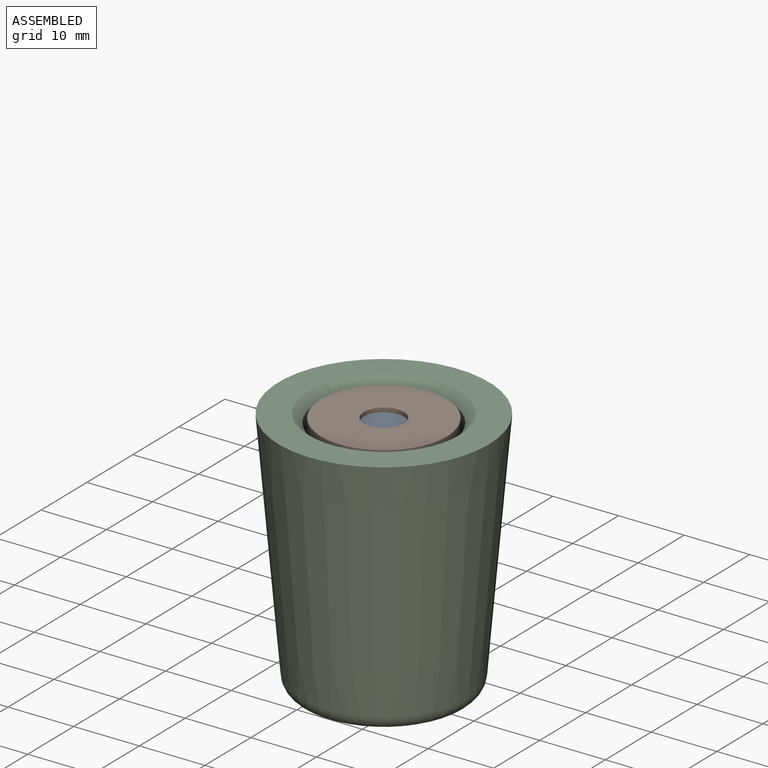
[diagram: assembled view]
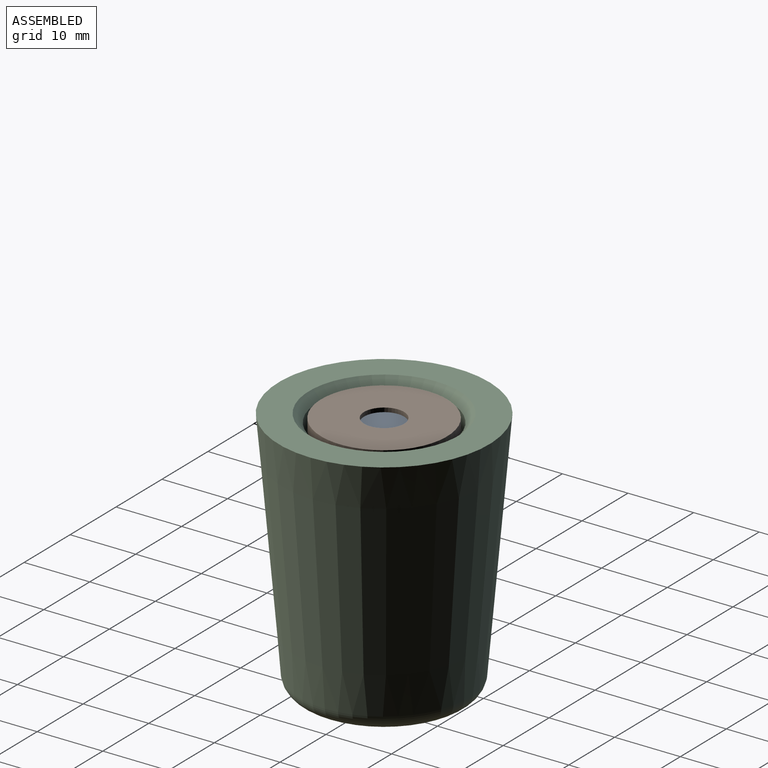
[diagram: assembled view, second angle]
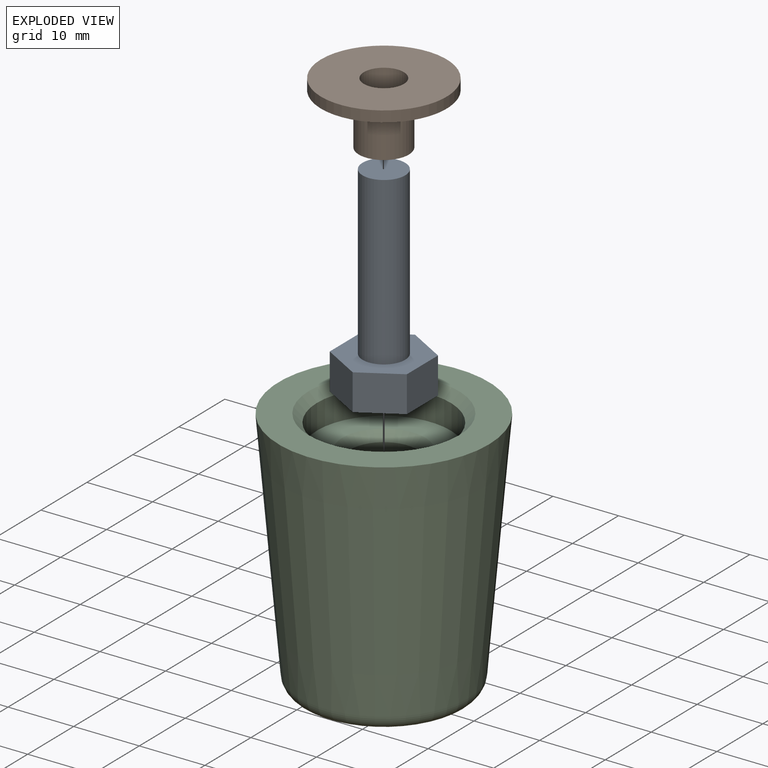
[diagram: exploded view]
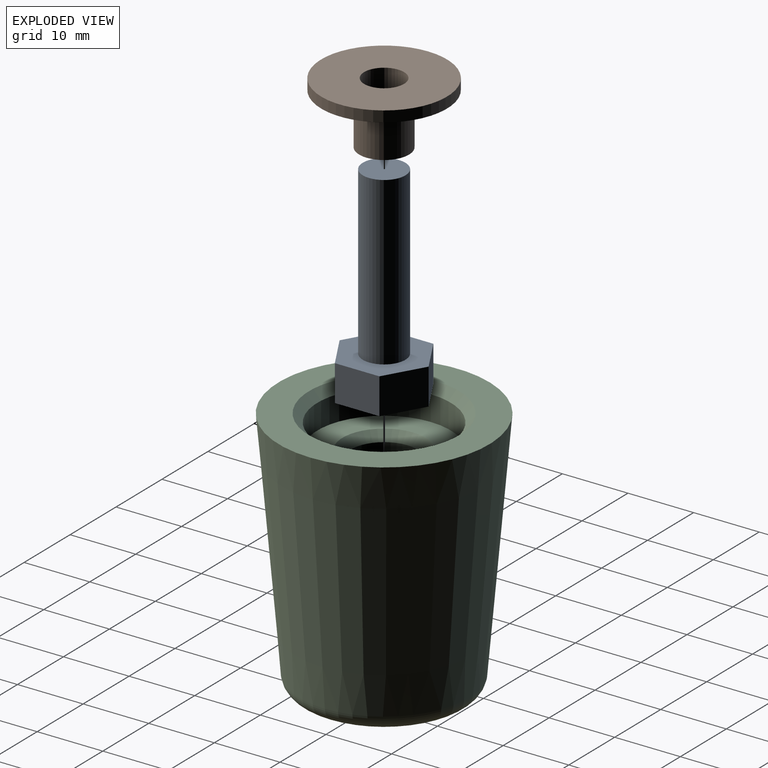
[diagram: exploded view, second angle]
ASSEMBLY  parts=3 mates=2
PART A: 10 faces, bbox 11.8x13.6x30.9 mm
  f0: plane 5.88x5.5mm, normal (0.5,0.87,0), area 37.3mm2, adj f1,f5,f6,f7
  f1: plane 5.88x5.5mm, normal (-0.5,0.87,0), area 37.3mm2, adj f0,f2,f6,f7
  f2: plane 6.78x5.5mm, normal (-1,0,0), area 37.3mm2, adj f1,f3,f6,f7
  f3: plane 5.88x5.5mm, normal (-0.5,-0.87,0), area 37.3mm2, adj f2,f4,f6,f7
  f4: plane 5.88x5.5mm, normal (0.5,-0.87,0), area 37.3mm2, adj f3,f5,f6,f7
  f5: plane 6.78x5.5mm, normal (1,0,0), area 37.3mm2, adj f0,f4,f6,f7
  f6: plane 13.57x11.75mm, normal (0,0,-1), area 86.4mm2, adj f0,f1,f2,f3,f4,f5,f8
  f7: plane 13.57x11.75mm, normal (0,0,1), area 119.6mm2, adj f0,f1,f2,f3,f4,f5
  f8: cylinder r=3.25mm len=25.4mm, axis (0,0,1), area 518.7mm2, adj f6,f9
  f9: plane 6.5x6.5mm, normal (0,0,-1), area 33.2mm2, adj f8
PART B: 6 faces, bbox 19.2x19.2x9.5 mm
  f0: cylinder r=3.05mm len=9.53mm, axis (0,0,1), area 182.4mm2, adj f2,f5
  f1: cylinder r=9.59mm len=19.18mm, axis (0,0,1), area 99.5mm2, adj f2,f3
  f2: plane 19.18x19.18mm, normal (0,0,-1), area 259.6mm2, adj f0,f1
  f3: plane 19.18x19.18mm, normal (0,0,1), area 243.2mm2, adj f1,f4
  f4: cylinder r=3.81mm len=7.87mm, axis (0,0,-1), area 188.5mm2, adj f3,f5
  f5: plane 7.62x7.62mm, normal (0,0,1), area 16.4mm2, adj f0,f4
PART C: 19 faces, bbox 32.1x32.1x38.1 mm
  f0: cylinder r=3.25mm len=15.24mm, axis (0,0,-1), area 311.2mm2, adj f10,f18
  f1: cone r=12.7mm half-angle=5deg, axis (0,0,1), area 3265.2mm2, adj f2,f15
  f2: plane 32.07x32.07mm, normal (0,0,1), area 397.2mm2, adj f1,f16
  f3: plane 20.75x20.75mm, normal (0,0,-1), area 218.4mm2, adj f4,f5,f6,f7,f8,f9,f15
  f4: plane 11.43x5.88mm, normal (-0.5,-0.87,0), area 77.5mm2, adj f3,f5,f9,f10
  f5: plane 11.43x5.88mm, normal (0.5,-0.87,0), area 77.5mm2, adj f3,f4,f6,f10
  f6: plane 11.43x6.78mm, normal (1,0,0), area 77.5mm2, adj f3,f5,f7,f10
  f7: plane 11.43x5.88mm, normal (0.5,0.87,0), area 77.5mm2, adj f3,f6,f8,f10
  f8: plane 11.43x5.88mm, normal (-0.5,0.87,0), area 77.5mm2, adj f3,f7,f9,f10
  f9: plane 11.43x6.78mm, normal (-1,0,0), area 77.5mm2, adj f3,f4,f8,f10
  f10: plane 13.57x11.75mm, normal (0,0,-1), area 86.4mm2, adj f0,f4,f5,f6,f7,f8,f9
  f11: cylinder r=10.16mm len=20.32mm, axis (0,0,1), area 243.2mm2, adj f12,f16
  f12: plane 20.32x20.32mm, normal (0,0,1), area 197.6mm2, adj f11,f17
  f13: cylinder r=5.08mm len=10.16mm, axis (0,0,1), area 121.6mm2, adj f14,f17
  f14: plane 10.16x10.16mm, normal (0,0,1), area 16.9mm2, adj f13,f18
  f15: torus R=10.37mm, axis (0,0,1), area 282.6mm2, adj f1,f3
  f16: cone r=10.16mm half-angle=45deg, axis (0,0,1), area 121.8mm2, adj f2,f11
  f17: cone r=5.08mm half-angle=45deg, axis (0,0,1), area 64.5mm2, adj f12,f13
  f18: cone r=3.25mm half-angle=45deg, axis (0,0,1), area 43.8mm2, adj f0,f14
PLACE A rot(axis=(1,0,0),180deg) t=(-18.62,24.74,35.63)mm
PLACE B rot(axis=(0,1,0),180deg) t=(11.86,-31.14,65.51)mm
PLACE C t=(-18.62,-5.74,29.7)mm
MATE fastened B.f0 <-> C.f0  axis (0,0,-1) through (-3.38,9.5,57.64)mm
MATE fastened A.f8 <-> C.f0  axis (0,0,-1) through (-3.38,9.5,41.13)mm
